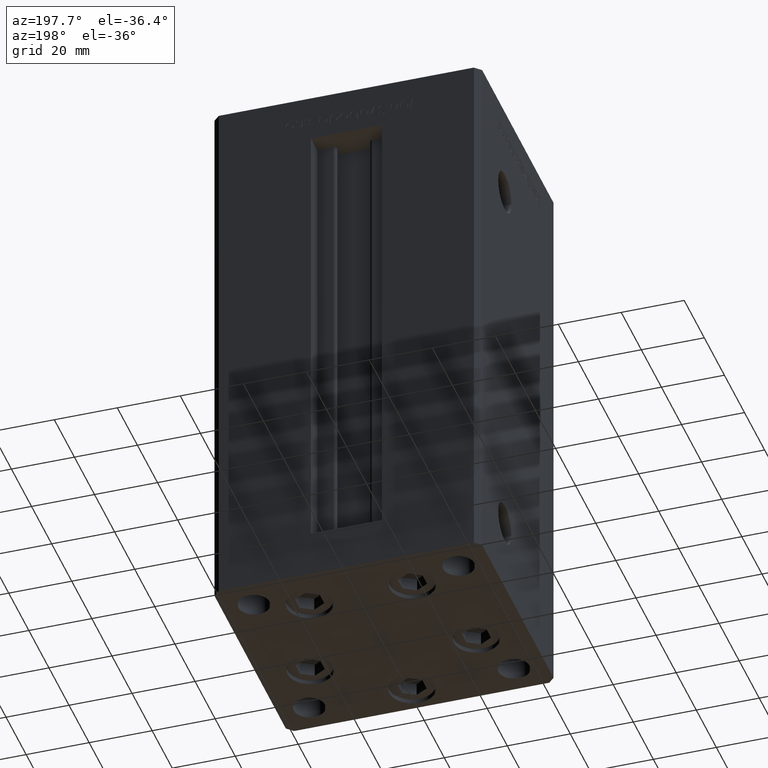
[diagram: clean part render]
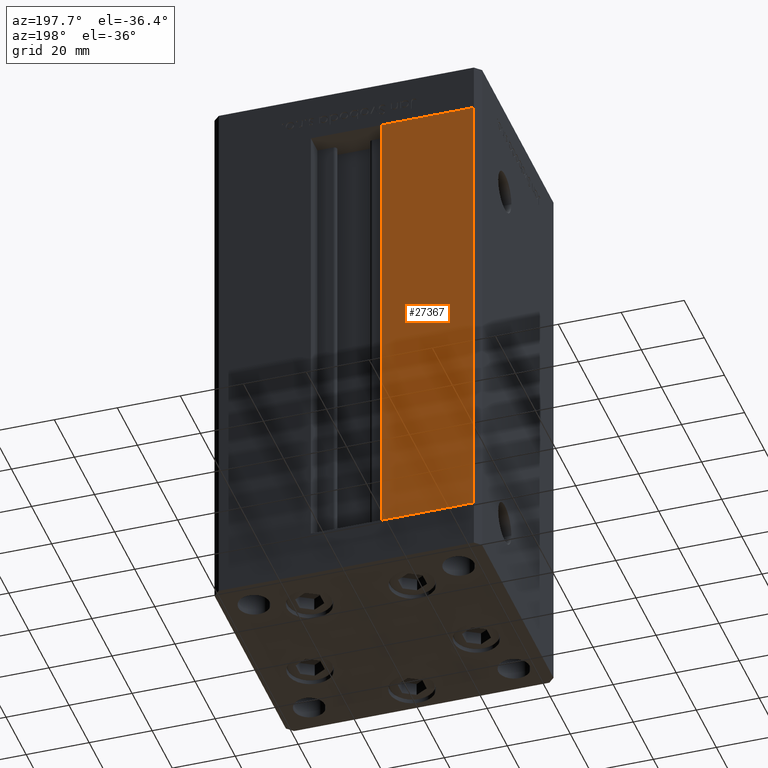
[diagram: same view with one face highlighted and labeled with its STEP entity id]
A machine part, auxiliary view. The second image highlights one B-rep face of the part: STEP entity #27367.
In plain terms, the highlighted planar face has unit normal (-0, -1, 0).
Its self-contained STEP definition (entity closure, byte-faithful):
#877 = CARTESIAN_POINT ( 'NONE',  ( -40.50000000000000000, 37.50000000000000711, 0.000000000000000000 ) ) ;
#2857 = ORIENTED_EDGE ( 'NONE', *, *, #9819, .T. ) ;
#3087 = DIRECTION ( 'NONE',  ( 1.000000000000000000, -2.372271420139223331E-16, 0.000000000000000000 ) ) ;
#3252 = EDGE_LOOP ( 'NONE', ( #37556, #38158, #2857, #25145 ) ) ;
#3709 = DIRECTION ( 'NONE',  ( -0.000000000000000000, -0.000000000000000000, 1.000000000000000000 ) ) ;
#7332 = DIRECTION ( 'NONE',  ( 1.000000000000000000, 0.000000000000000000, 0.000000000000000000 ) ) ;
#8458 = VERTEX_POINT ( 'NONE', #43397 ) ;
#9819 = EDGE_CURVE ( 'NONE', #51067, #43812, #12956, .T. ) ;
#11637 = CARTESIAN_POINT ( 'NONE',  ( -40.50000000000000000, 37.50000000000000711, 148.5000000000000000 ) ) ;
#12956 = LINE ( 'NONE', #25088, #26152 ) ;
#15246 = LINE ( 'NONE', #19459, #39961 ) ;
#15735 = PLANE ( 'NONE',  #29854 ) ;
#16999 = CARTESIAN_POINT ( 'NONE',  ( -11.25000000000000000, 37.50000000000000000, 0.000000000000000000 ) ) ;
#19459 = CARTESIAN_POINT ( 'NONE',  ( -11.25000000000000000, 37.50000000000000000, 148.5000000000000000 ) ) ;
#23746 = CARTESIAN_POINT ( 'NONE',  ( -11.25000000000000000, 37.50000000000000000, 0.000000000000000000 ) ) ;
#25088 = CARTESIAN_POINT ( 'NONE',  ( -11.25000000000000000, 37.50000000000000000, 0.000000000000000000 ) ) ;
#25145 = ORIENTED_EDGE ( 'NONE', *, *, #32651, .F. ) ;
#25287 = EDGE_CURVE ( 'NONE', #46064, #8458, #15246, .T. ) ;
#26152 = VECTOR ( 'NONE', #49102, 1000.000000000000000 ) ;
#27084 = VECTOR ( 'NONE', #3709, 1000.000000000000000 ) ;
#27308 = LINE ( 'NONE', #43404, #31199 ) ;
#27367 = ADVANCED_FACE ( 'NONE', ( #39488 ), #15735, .F. ) ;
#27702 = LINE ( 'NONE', #23746, #27084 ) ;
#29854 = AXIS2_PLACEMENT_3D ( 'NONE', #47916, #40011, #3087 ) ;
#31199 = VECTOR ( 'NONE', #44195, 1000.000000000000000 ) ;
#32651 = EDGE_CURVE ( 'NONE', #46064, #43812, #27308, .T. ) ;
#35645 = EDGE_CURVE ( 'NONE', #51067, #8458, #27702, .T. ) ;
#37556 = ORIENTED_EDGE ( 'NONE', *, *, #25287, .T. ) ;
#38158 = ORIENTED_EDGE ( 'NONE', *, *, #35645, .F. ) ;
#39488 = FACE_OUTER_BOUND ( 'NONE', #3252, .T. ) ;
#39961 = VECTOR ( 'NONE', #7332, 1000.000000000000000 ) ;
#40011 = DIRECTION ( 'NONE',  ( -2.372271420139223331E-16, -1.000000000000000000, 0.000000000000000000 ) ) ;
#43397 = CARTESIAN_POINT ( 'NONE',  ( -11.25000000000000000, 37.50000000000000000, 148.5000000000000000 ) ) ;
#43404 = CARTESIAN_POINT ( 'NONE',  ( -40.50000000000000000, 37.50000000000000711, 148.5000000000000000 ) ) ;
#43812 = VERTEX_POINT ( 'NONE', #877 ) ;
#44195 = DIRECTION ( 'NONE',  ( -0.000000000000000000, -0.000000000000000000, -1.000000000000000000 ) ) ;
#46064 = VERTEX_POINT ( 'NONE', #11637 ) ;
#47916 = CARTESIAN_POINT ( 'NONE',  ( -11.25000000000000000, 37.50000000000000000, 148.5000000000000000 ) ) ;
#49102 = DIRECTION ( 'NONE',  ( -1.000000000000000000, 2.372271420139223331E-16, 0.000000000000000000 ) ) ;
#51067 = VERTEX_POINT ( 'NONE', #16999 ) ;